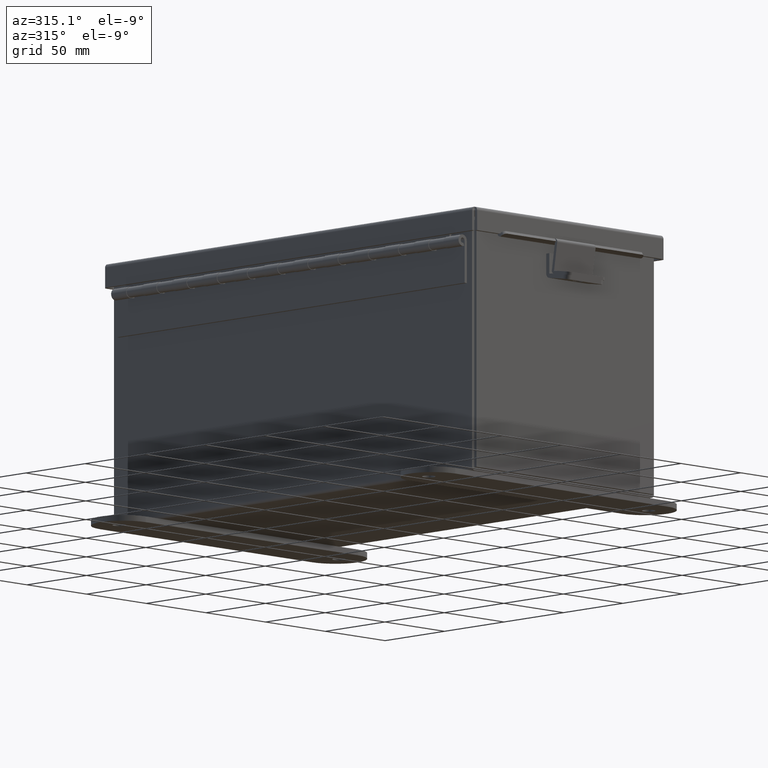
[diagram: clean part render]
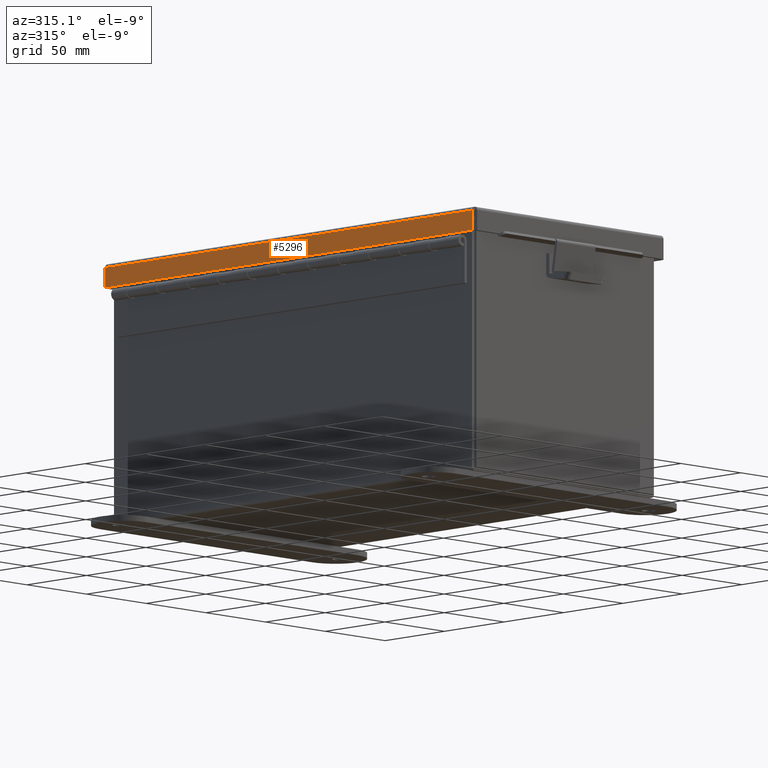
[diagram: same view with one face highlighted and labeled with its STEP entity id]
A machine part, auxiliary view. The second image highlights one B-rep face of the part: STEP entity #5296.
In plain terms, the highlighted planar face has unit normal (1, -0, 0).
Its self-contained STEP definition (entity closure, byte-faithful):
#52 = LINE ( 'NONE', #11094, #12480 ) ;
#466 = VERTEX_POINT ( 'NONE', #11370 ) ;
#504 = DIRECTION ( 'NONE',  ( 3.363654414526079700E-015, 3.091348672334815300E-029, 1.000000000000000000 ) ) ;
#621 = ORIENTED_EDGE ( 'NONE', *, *, #2307, .T. ) ;
#646 = CARTESIAN_POINT ( 'NONE',  ( 3.156250000000020000, -6.074478932188135600, 0.0000000000000000000 ) ) ;
#825 = PLANE ( 'NONE',  #8961 ) ;
#1027 = VERTEX_POINT ( 'NONE', #5896 ) ;
#2188 = ORIENTED_EDGE ( 'NONE', *, *, #5454, .T. ) ;
#2307 = EDGE_CURVE ( 'NONE', #9686, #1027, #3738, .T. ) ;
#3738 = LINE ( 'NONE', #15356, #9736 ) ;
#3859 = DIRECTION ( 'NONE',  ( -6.697214100988701600E-031, -1.000000000000000000, -3.106139814307734000E-029 ) ) ;
#3950 = EDGE_CURVE ( 'NONE', #9686, #8675, #52, .T. ) ;
#4611 = VECTOR ( 'NONE', #504, 39.37007874015748100 ) ;
#4666 = CARTESIAN_POINT ( 'NONE',  ( 3.156250000000020000, -6.402768735150616900E-018, -1.092739197465705300E-014 ) ) ;
#5048 = EDGE_LOOP ( 'NONE', ( #8150, #621, #2188, #9560 ) ) ;
#5296 = ADVANCED_FACE ( 'NONE', ( #7391 ), #825, .F. ) ;
#5454 = EDGE_CURVE ( 'NONE', #1027, #466, #9083, .T. ) ;
#5896 = CARTESIAN_POINT ( 'NONE',  ( 3.156250000000021800, 6.074478932188134700, 0.4873000000000098400 ) ) ;
#6790 = DIRECTION ( 'NONE',  ( -6.697214100988701600E-031, -1.000000000000000000, -3.106139814307734000E-029 ) ) ;
#7391 = FACE_OUTER_BOUND ( 'NONE', #5048, .T. ) ;
#8150 = ORIENTED_EDGE ( 'NONE', *, *, #3950, .F. ) ;
#8675 = VERTEX_POINT ( 'NONE', #10470 ) ;
#8961 = AXIS2_PLACEMENT_3D ( 'NONE', #4666, #15152, #13720 ) ;
#9083 = LINE ( 'NONE', #14094, #15035 ) ;
#9458 = DIRECTION ( 'NONE',  ( 3.363654414526079700E-015, 3.091348672334815300E-029, 1.000000000000000000 ) ) ;
#9560 = ORIENTED_EDGE ( 'NONE', *, *, #9610, .F. ) ;
#9610 = EDGE_CURVE ( 'NONE', #8675, #466, #14183, .T. ) ;
#9686 = VERTEX_POINT ( 'NONE', #11907 ) ;
#9736 = VECTOR ( 'NONE', #9458, 39.37007874015748100 ) ;
#10470 = CARTESIAN_POINT ( 'NONE',  ( 3.156250000000020000, -6.074478932188135600, 0.01300000000000010700 ) ) ;
#11094 = CARTESIAN_POINT ( 'NONE',  ( 3.156250000000020000, -6.156249999999999100, 0.01300000000000010700 ) ) ;
#11370 = CARTESIAN_POINT ( 'NONE',  ( 3.156250000000021800, -6.074478932188135600, 0.4873000000000000100 ) ) ;
#11907 = CARTESIAN_POINT ( 'NONE',  ( 3.156250000000020000, 6.074478932188135600, 0.01300000000000010700 ) ) ;
#12480 = VECTOR ( 'NONE', #3859, 39.37007874015748100 ) ;
#13720 = DIRECTION ( 'NONE',  ( 3.363654414526079300E-015, 3.091348672334815900E-029, 1.000000000000000000 ) ) ;
#14094 = CARTESIAN_POINT ( 'NONE',  ( 3.156250000000021800, -6.936332796413168700E-018, 0.4873000000000000100 ) ) ;
#14183 = LINE ( 'NONE', #646, #4611 ) ;
#15035 = VECTOR ( 'NONE', #6790, 39.37007874015748100 ) ;
#15152 = DIRECTION ( 'NONE',  ( -1.000000000000000000, -4.663032797665644900E-031, 3.363654414526079300E-015 ) ) ;
#15356 = CARTESIAN_POINT ( 'NONE',  ( 3.156250000000020000, 6.074478932188135600, -1.092739197465705300E-014 ) ) ;